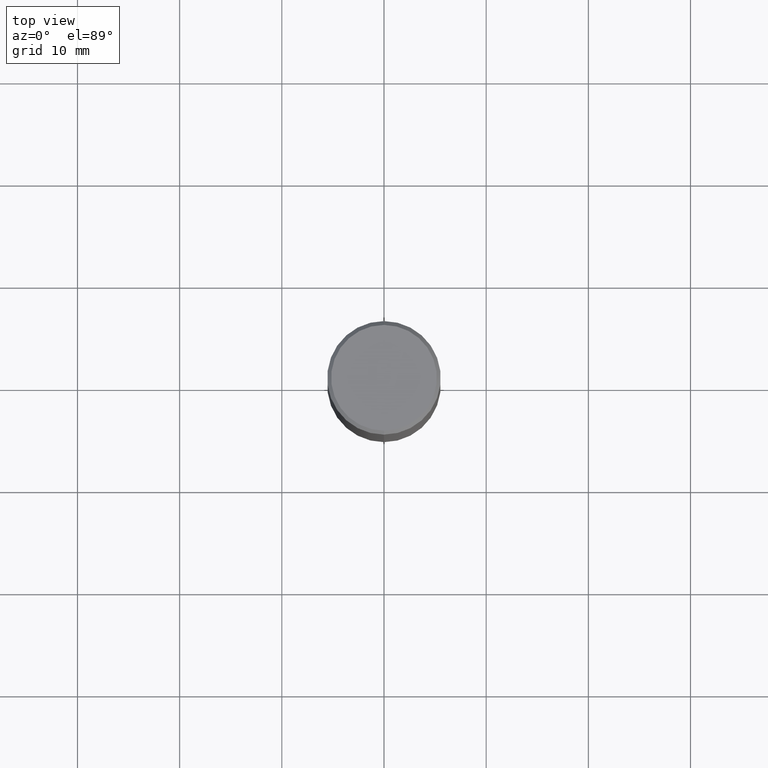
[diagram: clean part render]
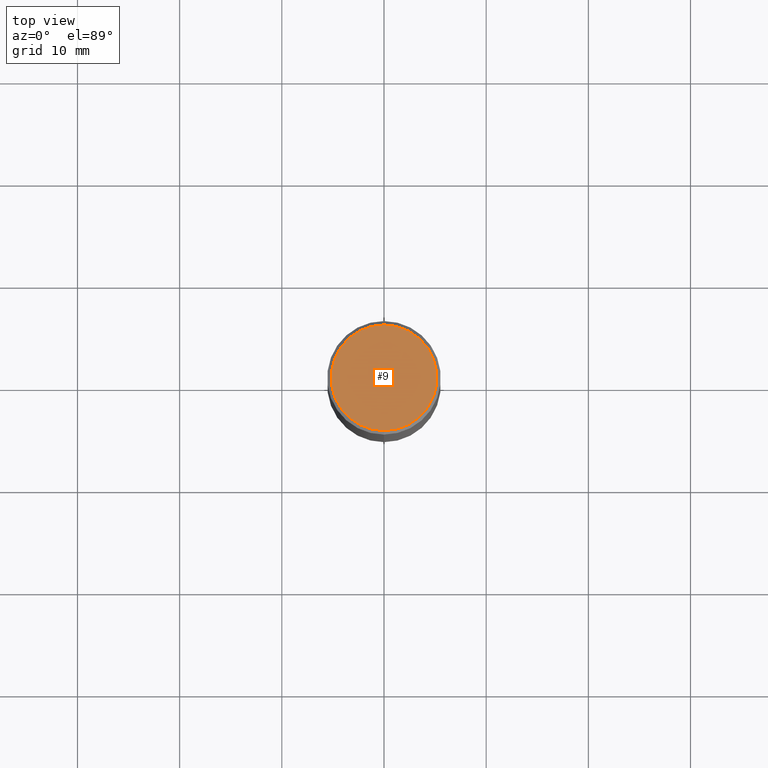
[diagram: same view with one face highlighted and labeled with its STEP entity id]
A machine part, top view. The second image highlights one B-rep face of the part: STEP entity #9.
In plain terms, the highlighted planar face has unit normal (0, -0, -1).
Its self-contained STEP definition (entity closure, byte-faithful):
#9 = ADVANCED_FACE ( 'NONE', ( #445 ), #491, .F. ) ;
#26 = CARTESIAN_POINT ( 'NONE',  ( 1.422778645578576487E-15, 0.2037499999999999867, -7.294575224700439705E-16 ) ) ;
#35 = CARTESIAN_POINT ( 'NONE',  ( 8.800468775944873433E-46, -1.256731004449036415E-31, -3.599051629250672199E-17 ) ) ;
#97 = VERTEX_POINT ( 'NONE', #488 ) ;
#147 = DIRECTION ( 'NONE',  ( -2.445218819430257669E-29, 3.491839334104495039E-15, 1.000000000000000000 ) ) ;
#152 = DIRECTION ( 'NONE',  ( -2.445218819430257669E-29, 3.491839334104495039E-15, 1.000000000000000000 ) ) ;
#191 = DIRECTION ( 'NONE',  ( -6.982962677686265133E-15, -1.000000000000000000, 3.491839334104495039E-15 ) ) ;
#231 = EDGE_LOOP ( 'NONE', ( #453, #367 ) ) ;
#244 = AXIS2_PLACEMENT_3D ( 'NONE', #35, #152, #191 ) ;
#274 = EDGE_CURVE ( 'NONE', #311, #97, #470, .T. ) ;
#296 = CIRCLE ( 'NONE', #413, 0.2037499999999999867 ) ;
#311 = VERTEX_POINT ( 'NONE', #393 ) ;
#315 = DIRECTION ( 'NONE',  ( -6.982962677686265133E-15, -1.000000000000000000, 3.491839334104495039E-15 ) ) ;
#367 = ORIENTED_EDGE ( 'NONE', *, *, #274, .T. ) ;
#374 = DIRECTION ( 'NONE',  ( 6.982962677686265922E-15, 1.000000000000000000, -3.491839334104495039E-15 ) ) ;
#379 = DIRECTION ( 'NONE',  ( 2.445218819430257109E-29, -3.491839334104495039E-15, -1.000000000000000000 ) ) ;
#393 = CARTESIAN_POINT ( 'NONE',  ( -1.449280202029235538E-15, -0.2037499999999999867, 6.754717480312840046E-16 ) ) ;
#413 = AXIS2_PLACEMENT_3D ( 'NONE', #429, #147, #315 ) ;
#415 = EDGE_CURVE ( 'NONE', #97, #311, #296, .T. ) ;
#429 = CARTESIAN_POINT ( 'NONE',  ( 8.800468775944873433E-46, -1.256731004449036415E-31, -3.599051629250672199E-17 ) ) ;
#445 = FACE_OUTER_BOUND ( 'NONE', #231, .T. ) ;
#453 = ORIENTED_EDGE ( 'NONE', *, *, #415, .T. ) ;
#470 = CIRCLE ( 'NONE', #244, 0.2037499999999999867 ) ;
#479 = AXIS2_PLACEMENT_3D ( 'NONE', #26, #379, #374 ) ;
#488 = CARTESIAN_POINT ( 'NONE',  ( 1.475150865661223764E-15, 0.2037499999999999867, -7.474527806162975225E-16 ) ) ;
#491 = PLANE ( 'NONE',  #479 ) ;